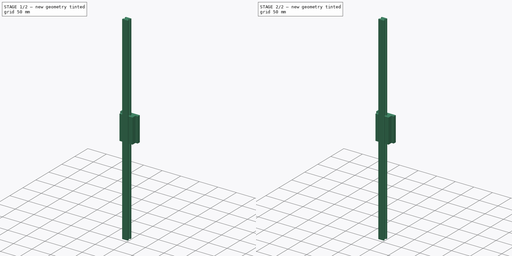
[diagram: build sequence overview — one tinted view per stage of 2, left to right]
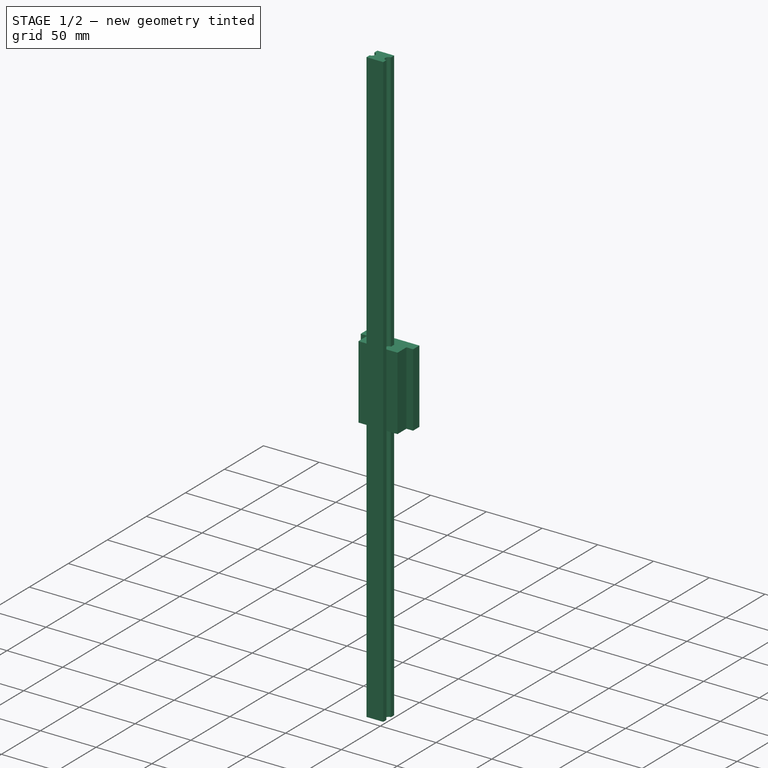
[diagram: stage 1 of 2 — iso view after this stage's code; geometry added in this stage tinted green]
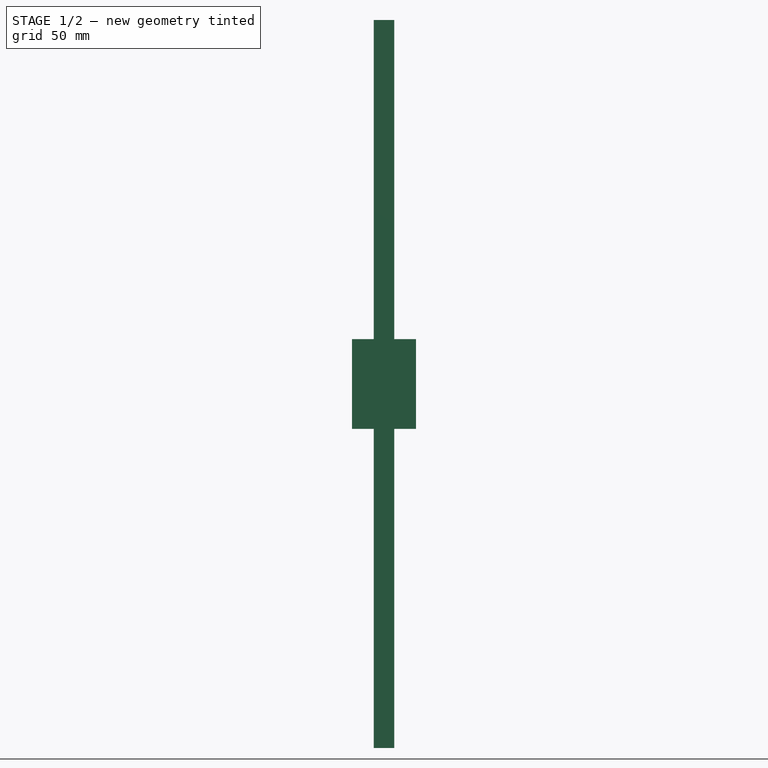
[diagram: stage 1 of 2 — front view after this stage's code; geometry added in this stage tinted green]
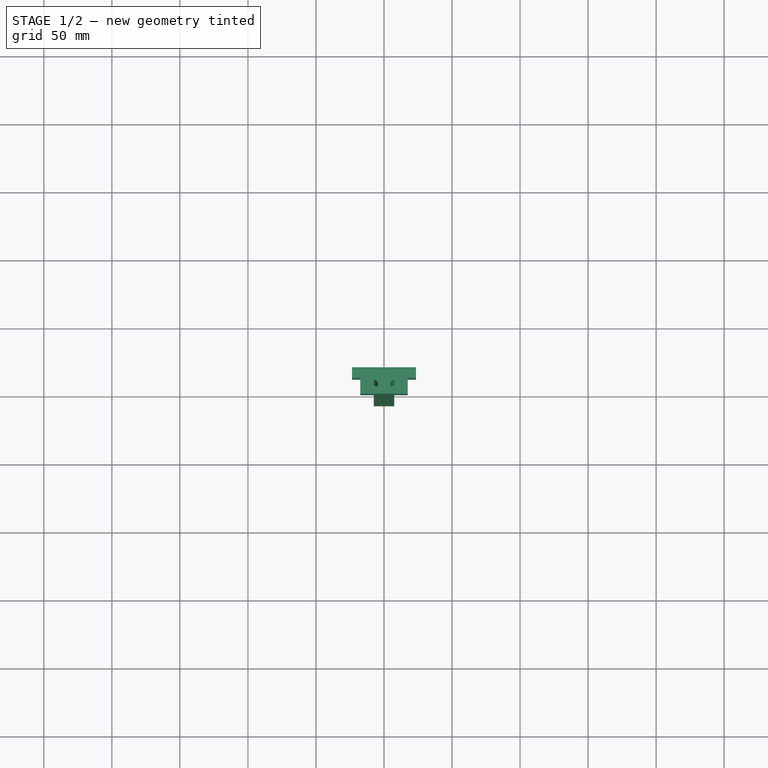
[diagram: stage 1 of 2 — top view after this stage's code; geometry added in this stage tinted green]
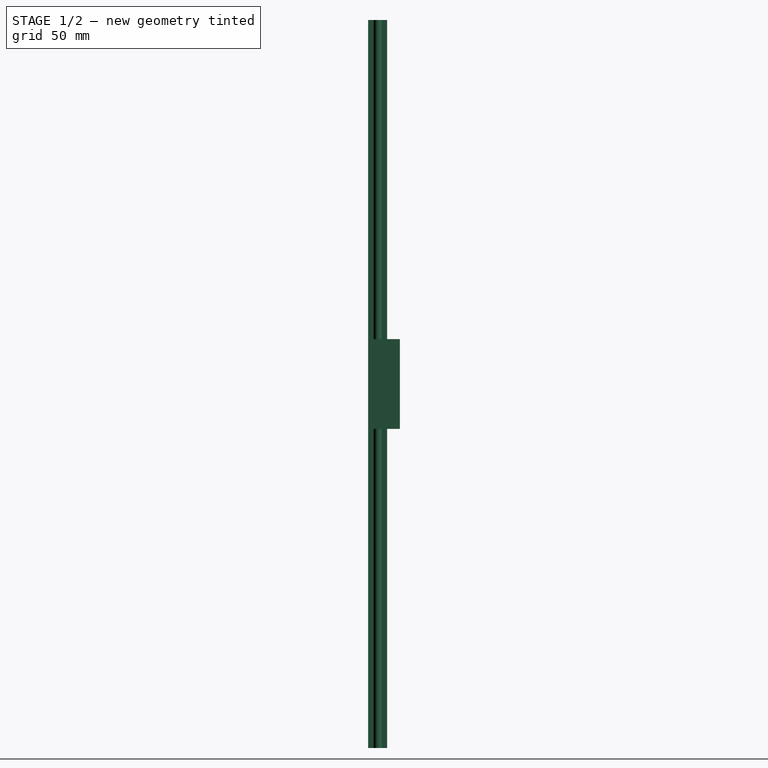
[diagram: stage 1 of 2 — right view after this stage's code; geometry added in this stage tinted green]
FCSTD DOCUMENT  (FreeCAD 0.15R4671 (Git))
Label: guia
License: All rights reserved
LicenseURL: http://en.wikipedia.org/wiki/All_rights_reserved
objects: Sketcher::SketchObject×2, PartDesign::Pad×2, Part::Feature×2, PartDesign::Fillet×1
note: 9 computed .brp shape members not serialized (recipe doc carries the construction recipe); baked Part::Feature solids carry a one-line shape summary decoded from their .brp

FEATURE [Sketcher::SketchObject] Sketch
  sketch-geometry (8):
    g0: LineSegment StartX=-7.5 StartY=7 StartZ=0 EndX=7.5 EndY=7 EndZ=0
    g1: LineSegment StartX=7.5 StartY=-7 StartZ=0 EndX=-7.5 EndY=-7 EndZ=0
    g2: ArcOfCircle CenterX=-7.5 CenterY=0 CenterZ=0 NormalX=0 NormalY=0 NormalZ=1 Radius=3 StartAngle=4.71239 EndAngle=7.85398
    g3: ArcOfCircle CenterX=7.51178 CenterY=0 CenterZ=0 NormalX=0 NormalY=0 NormalZ=1 Radius=3 StartAngle=1.57472 EndAngle=4.70846
    g4: LineSegment StartX=-7.5 StartY=7 StartZ=0 EndX=-7.5 EndY=3 EndZ=0
    g5: LineSegment StartX=7.5 StartY=7 StartZ=0 EndX=7.5 EndY=2.99998 EndZ=0
    g6: LineSegment StartX=-7.5 StartY=-3 StartZ=0 EndX=-7.5 EndY=-7 EndZ=0
    g7: LineSegment StartX=7.5 StartY=-2.99998 StartZ=0 EndX=7.5 EndY=-7 EndZ=0
  constraints (20):
    c: Horizontal(g0)
    c: Horizontal(g1)
    c: Symmetric(g0,g0,g-2)
    c: Symmetric(g1,g0,g-1)
    c: DistanceX(g1) = -15
    c: Radius(g2) = 3
    c: Equal(g2,g3)
    c: Symmetric(g2,g2,g-1)
    c: Symmetric(g3,g3,g-1)
    c: Coincident(g4,g0)
    c: Coincident(g4,g2)
    c: Vertical(g4)
    c: Coincident(g5,g0)
    c: Coincident(g5,g3)
    c: Vertical(g5)
    c: Coincident(g6,g2)
    c: Coincident(g6,g1)
    c: Vertical(g6)
    c: Coincident(g7,g3)
    c: Coincident(g7,g1)
FEATURE [PartDesign::Pad] Pad
  Length = 535
  Length2 = 100
  Midplane = true
  Sketch = -> Sketch
  Type = 0
FEATURE [Sketcher::SketchObject] Sketch002
  sketch-geometry (14):
    g0: LineSegment StartX=-7.5 StartY=7 StartZ=0 EndX=7.5 EndY=7 EndZ=0
    g1: ArcOfCircle CenterX=-7.50002 CenterY=0 CenterZ=0 NormalX=0 NormalY=0 NormalZ=1 Radius=3 StartAngle=4.7124 EndAngle=7.85397
    g2: ArcOfCircle CenterX=7.51181 CenterY=0 CenterZ=0 NormalX=0 NormalY=0 NormalZ=1 Radius=3 StartAngle=1.57473 EndAngle=4.70845
    g3: LineSegment StartX=-7.5 StartY=7 StartZ=0 EndX=-7.5 EndY=3 EndZ=0
    g4: LineSegment StartX=7.5 StartY=7 StartZ=0 EndX=7.5 EndY=2.99998 EndZ=0
    g5: LineSegment StartX=-7.5 StartY=-3 StartZ=0 EndX=-17.5 EndY=-3 EndZ=0
    g6: LineSegment StartX=-17.5 StartY=-3 StartZ=0 EndX=-17.5 EndY=8.4 EndZ=0
    g7: LineSegment StartX=-17.5 StartY=8.4 StartZ=0 EndX=-23.5 EndY=8.4 EndZ=0
    g8: LineSegment StartX=-23.5 StartY=8.4 StartZ=0 EndX=-23.5 EndY=16.4 EndZ=0
    g9: LineSegment StartX=-23.5 StartY=16.4 StartZ=0 EndX=23.5 EndY=16.4 EndZ=0
    g10: LineSegment StartX=23.5 StartY=16.4 StartZ=0 EndX=23.5 EndY=8.4 EndZ=0
    g11: LineSegment StartX=23.5 StartY=8.4 StartZ=0 EndX=17.5 EndY=8.4 EndZ=0
    g12: LineSegment StartX=17.5 StartY=8.4 StartZ=0 EndX=17.5 EndY=-2.99998 EndZ=0
    g13: LineSegment StartX=7.5 StartY=-2.99998 StartZ=0 EndX=17.5 EndY=-2.99998 EndZ=0
  constraints (38):
    c: Horizontal(g0)
    c: Symmetric(g0,g0,g-2)
    c: Radius(g1) = 3
    c: Equal(g1,g2)
    c: Symmetric(g1,g1,g-1)
    c: Symmetric(g2,g2,g-1)
    c: Coincident(g3,g0)
    c: Coincident(g3,g1)
    c: Vertical(g3)
    c: Coincident(g4,g0)
    c: Coincident(g4,g2)
    c: Vertical(g4)
    c: Coincident(g5,g1)
    c: Horizontal(g5)
    c: Coincident(g6,g5)
    c: Vertical(g6)
    c: Coincident(g7,g6)
    c: Horizontal(g7)
    c: Coincident(g8,g7)
    c: Vertical(g8)
    c: Coincident(g9,g8)
    c: Horizontal(g9)
    c: Coincident(g10,g9)
    c: Vertical(g10)
    c: Coincident(g11,g10)
    c: Horizontal(g11)
    c: Coincident(g12,g11)
    c: Vertical(g12)
    c: Coincident(g13,g2)
    c: Coincident(g13,g12)
    c: Horizontal(g13)
    c: Symmetric(g8,g9,g-2)
    c: Symmetric(g11,g6,g-2)
    c: DistanceX(g9) = 47
    c: DistanceY(g5,g8) = 19.4
    c: DistanceY(g8) = 8
    c: DistanceX(g1,g7) = -16
    c: DistanceX(g11) = -6
FEATURE [PartDesign::Pad] Pad001
  Length = 66
  Length2 = 100
  Midplane = true
  Sketch = -> Sketch002
  Type = 0
FEATURE [Part::Feature] Pad002  label="patin"
  shape: bbox 47 x 19.4 x 66 mm, 16 faces (baked)
FEATURE [Part::Feature] Fillet001  label="guia"
  shape: bbox 15 x 14 x 535 mm, 18 faces (baked)
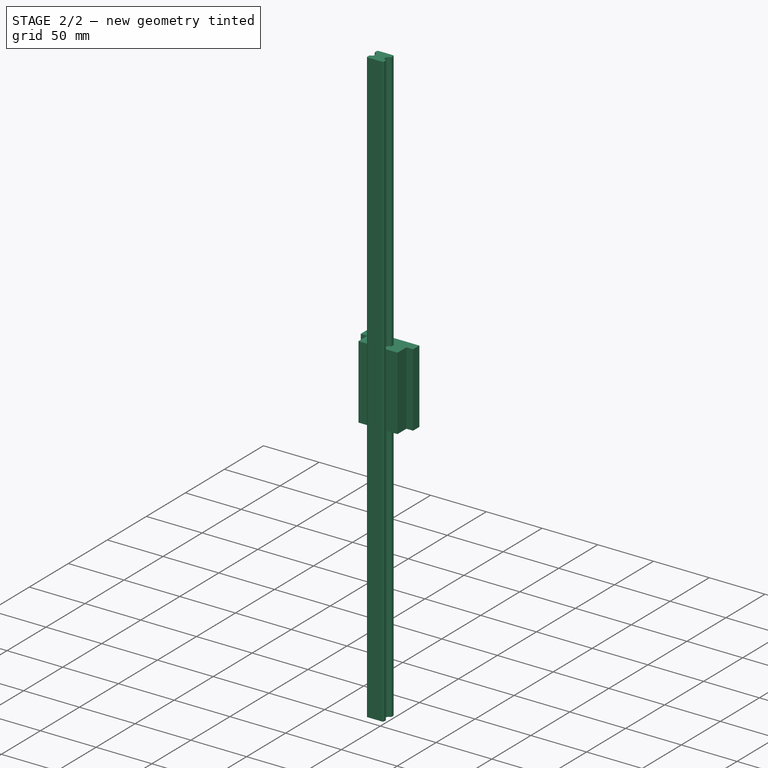
[diagram: stage 2 of 2 — iso view after this stage's code; geometry added in this stage tinted green]
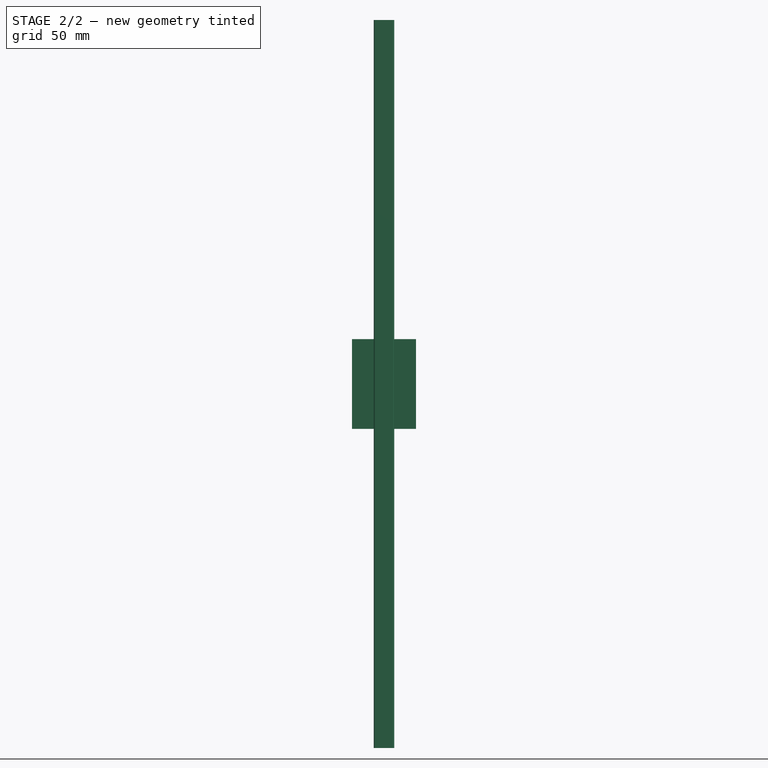
[diagram: stage 2 of 2 — front view after this stage's code; geometry added in this stage tinted green]
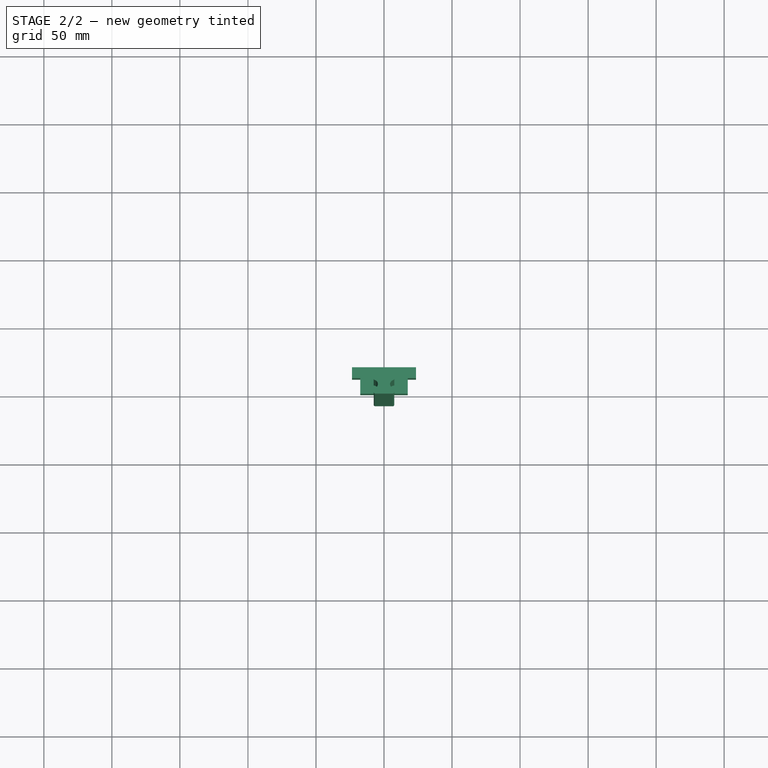
[diagram: stage 2 of 2 — top view after this stage's code; geometry added in this stage tinted green]
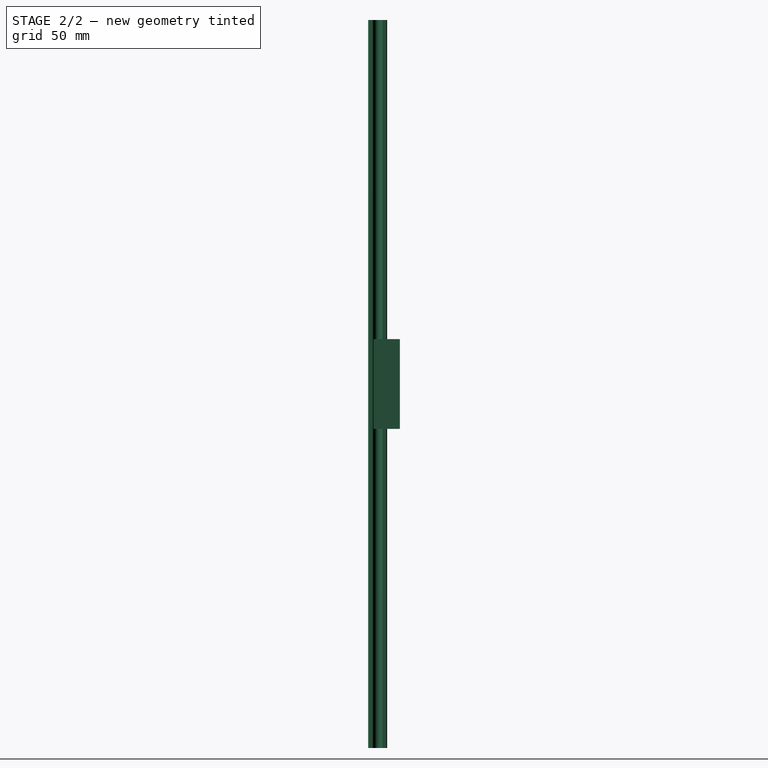
[diagram: stage 2 of 2 — right view after this stage's code; geometry added in this stage tinted green]
FEATURE [PartDesign::Fillet] Fillet
  Base = -> Pad [Edge8,Edge11,Edge14,Edge17,Edge5,Edge2,Edge1,Edge20]
  Radius = 1
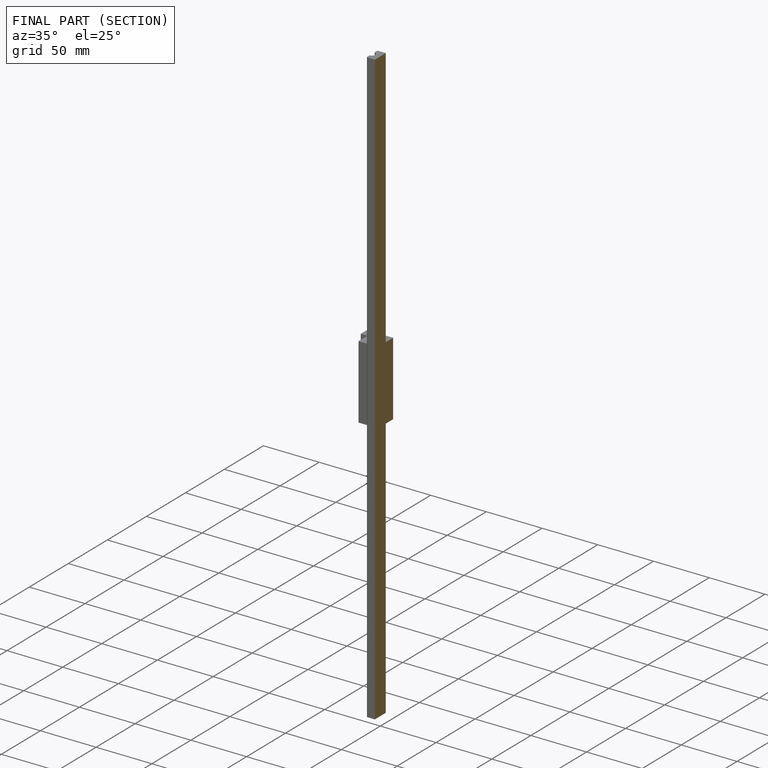
[diagram: finished part — half-section view (interior)]
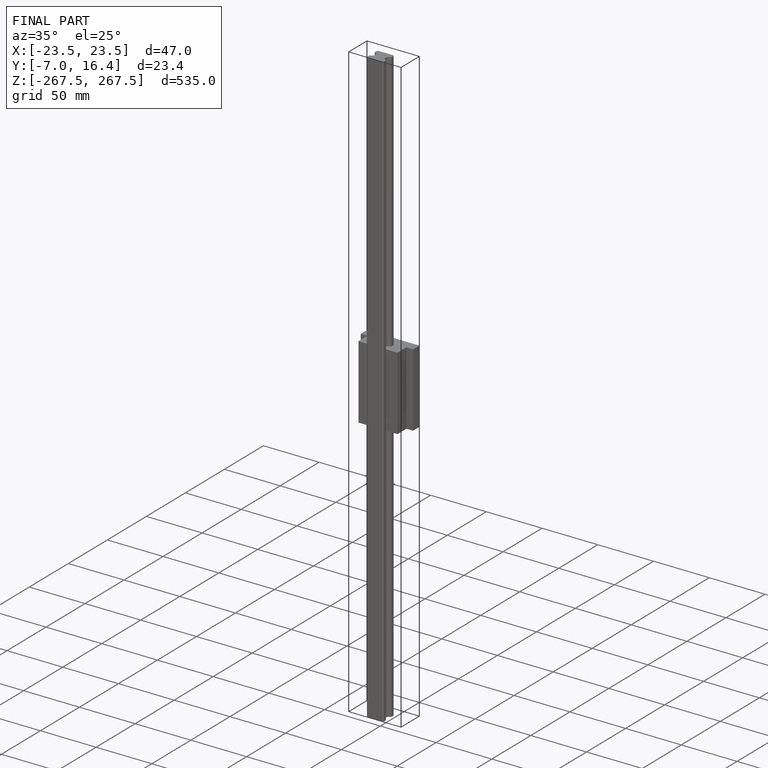
[diagram: finished part — iso view with bounding-box wireframe]
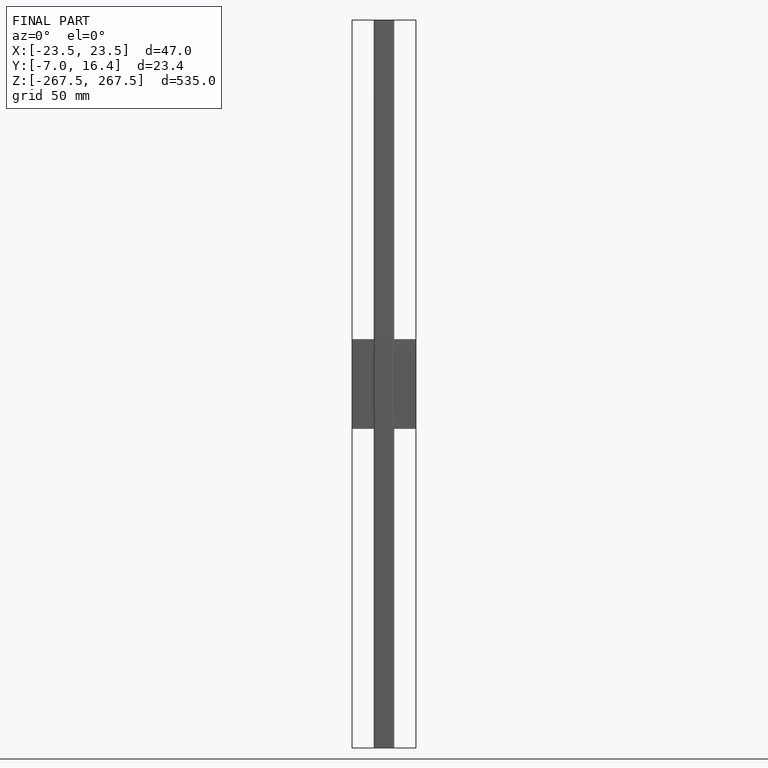
[diagram: finished part — front view with bounding-box wireframe]
